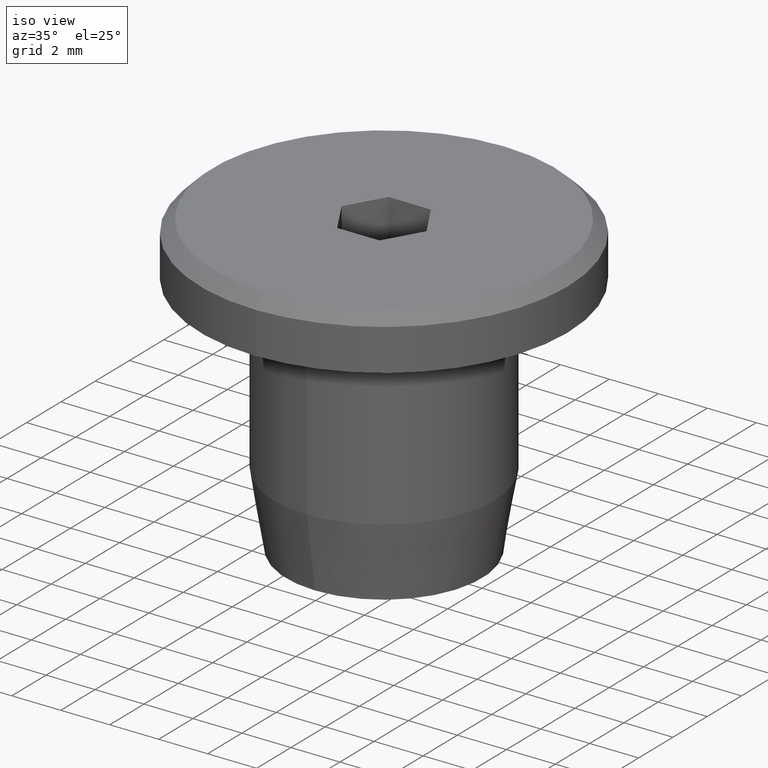
[diagram: clean part render]
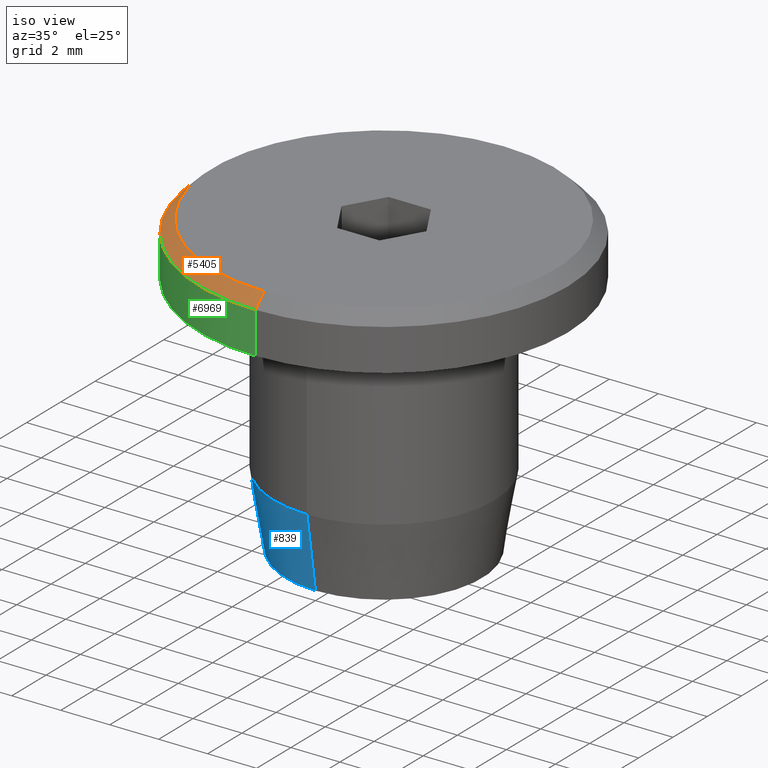
[diagram: same view with three faces highlighted in distinct colors, each labeled with its STEP entity id]
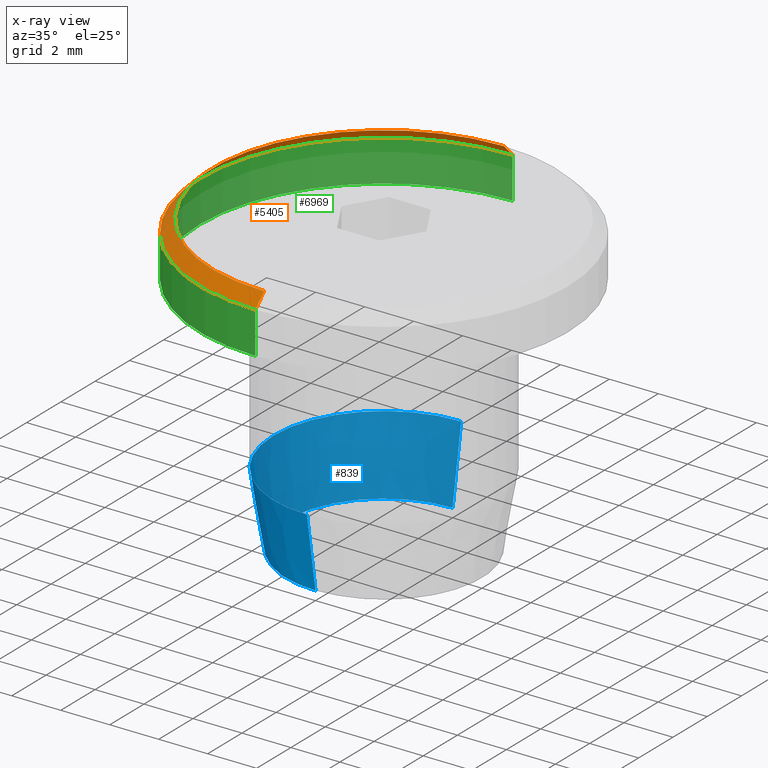
[diagram: x-ray of the same camera — body ghosted, the three highlighted faces saturated]
A machine part, iso view with three faces highlighted in distinct colors.
The next image is the same camera in x-ray (body ghosted, the three faces saturated) — at least one of them is partly hidden behind the body in this view.
Their STEP definitions:

[orange] entity #5405 — the highlighted conical surface has half-angle 45 deg.
#164 = LINE ( 'NONE', #401, #15071 ) ;
#240 = DIRECTION ( 'NONE',  ( 0.0000000000000000000, 1.000000000000000000, 3.469446951953613700E-016 ) ) ;
#401 = CARTESIAN_POINT ( 'NONE',  ( 9.184850993605149900E-016, -7.500000000000001800, 5.599999999999997900 ) ) ;
#788 = AXIS2_PLACEMENT_3D ( 'NONE', #1463, #7845, #240 ) ;
#886 = EDGE_CURVE ( 'NONE', #16173, #5833, #164, .T. ) ;
#912 = ORIENTED_EDGE ( 'NONE', *, *, #15570, .T. ) ;
#1050 = DIRECTION ( 'NONE',  ( 0.0000000000000000000, 0.7071067811865477900, -0.7071067811865473500 ) ) ;
#1238 = DIRECTION ( 'NONE',  ( 0.0000000000000000000, -1.000000000000000000, -3.717264591378871700E-016 ) ) ;
#1463 = CARTESIAN_POINT ( 'NONE',  ( 0.0000000000000000000, -1.081942592009319800E-015, 5.600000000000000500 ) ) ;
#1673 = CIRCLE ( 'NONE', #6494, 7.000000000000000900 ) ;
#1884 = FACE_OUTER_BOUND ( 'NONE', #15128, .T. ) ;
#3779 = CARTESIAN_POINT ( 'NONE',  ( 0.0000000000000000000, -1.255262969126036500E-015, 6.100000000000000500 ) ) ;
#4734 = CARTESIAN_POINT ( 'NONE',  ( 0.0000000000000000000, 7.000000000000000000, 6.100000000000003200 ) ) ;
#5161 = ORIENTED_EDGE ( 'NONE', *, *, #9118, .F. ) ;
#5299 = CARTESIAN_POINT ( 'NONE',  ( 0.0000000000000000000, -1.081942592009320500E-015, 5.600000000000002300 ) ) ;
#5405 = ADVANCED_FACE ( 'NONE', ( #1884 ), #11635, .T. ) ;
#5833 = VERTEX_POINT ( 'NONE', #11811 ) ;
#5858 = ORIENTED_EDGE ( 'NONE', *, *, #16343, .F. ) ;
#6494 = AXIS2_PLACEMENT_3D ( 'NONE', #3779, #8838, #1238 ) ;
#6590 = CARTESIAN_POINT ( 'NONE',  ( 0.0000000000000000000, 7.500000000000000000, 5.600000000000005000 ) ) ;
#6641 = DIRECTION ( 'NONE',  ( -0.0000000000000000000, 3.466407542334332000E-016, -1.000000000000000000 ) ) ;
#7216 = VECTOR ( 'NONE', #1050, 1000.000000000000000 ) ;
#7655 = ORIENTED_EDGE ( 'NONE', *, *, #886, .F. ) ;
#7845 = DIRECTION ( 'NONE',  ( -0.0000000000000000000, 3.466407542334332000E-016, -1.000000000000000000 ) ) ;
#8838 = DIRECTION ( 'NONE',  ( 0.0000000000000000000, -3.466407542334334500E-016, 1.000000000000000000 ) ) ;
#9118 = EDGE_CURVE ( 'NONE', #5833, #10321, #16154, .T. ) ;
#9148 = DIRECTION ( 'NONE',  ( 8.659560562354934100E-017, -0.7071067811865473500, -0.7071067811865477900 ) ) ;
#9883 = CARTESIAN_POINT ( 'NONE',  ( 0.0000000000000000000, 7.500000000000000000, 5.600000000000003200 ) ) ;
#10321 = VERTEX_POINT ( 'NONE', #6590 ) ;
#11369 = AXIS2_PLACEMENT_3D ( 'NONE', #5299, #6641, #14167 ) ;
#11635 = CONICAL_SURFACE ( 'NONE', #788, 7.500000000000000900, 0.7853981633974482800 ) ;
#11811 = CARTESIAN_POINT ( 'NONE',  ( 9.184850993605149900E-016, -7.500000000000001800, 5.599999999999999600 ) ) ;
#13388 = VERTEX_POINT ( 'NONE', #4734 ) ;
#14167 = DIRECTION ( 'NONE',  ( 0.0000000000000000000, -1.000000000000000000, -3.469446951953613700E-016 ) ) ;
#14767 = CARTESIAN_POINT ( 'NONE',  ( 8.878689293818312000E-016, -7.000000000000001800, 6.099999999999997900 ) ) ;
#14975 = LINE ( 'NONE', #9883, #7216 ) ;
#15071 = VECTOR ( 'NONE', #9148, 1000.000000000000000 ) ;
#15128 = EDGE_LOOP ( 'NONE', ( #7655, #5858, #912, #5161 ) ) ;
#15570 = EDGE_CURVE ( 'NONE', #13388, #10321, #14975, .T. ) ;
#16154 = CIRCLE ( 'NONE', #11369, 7.500000000000000900 ) ;
#16173 = VERTEX_POINT ( 'NONE', #14767 ) ;
#16343 = EDGE_CURVE ( 'NONE', #13388, #16173, #1673, .T. ) ;

[blue] entity #839 — the highlighted conical surface has half-angle 9.462 deg.
#839 = ADVANCED_FACE ( 'NONE', ( #10503 ), #7718, .T. ) ;
#936 = CARTESIAN_POINT ( 'NONE',  ( 0.0000000000000000000, 2.973754232521852100E-015, -6.100000000000001400 ) ) ;
#1059 = CARTESIAN_POINT ( 'NONE',  ( 0.0000000000000000000, 4.500000000000007100, -3.099999999999806000 ) ) ;
#1586 = VECTOR ( 'NONE', #4272, 1000.000000000000000 ) ;
#1607 = CARTESIAN_POINT ( 'NONE',  ( 0.0000000000000000000, 1.933831969821484500E-015, -3.099999999999807800 ) ) ;
#2013 = EDGE_CURVE ( 'NONE', #6534, #4172, #11989, .T. ) ;
#3240 = EDGE_CURVE ( 'NONE', #16111, #6534, #11735, .T. ) ;
#4110 = CARTESIAN_POINT ( 'NONE',  ( 0.0000000000000000000, 2.973754232521852100E-015, -6.100000000000001400 ) ) ;
#4172 = VERTEX_POINT ( 'NONE', #5040 ) ;
#4272 = DIRECTION ( 'NONE',  ( 2.013306935865685300E-017, 0.1643989873053539900, 0.9863939238321443000 ) ) ;
#5040 = CARTESIAN_POINT ( 'NONE',  ( 5.510910596163096500E-016, -4.500000000000003600, -3.099999999999809600 ) ) ;
#5259 = DIRECTION ( 'NONE',  ( 0.0000000000000000000, -3.466407542334335000E-016, 1.000000000000000000 ) ) ;
#5593 = CIRCLE ( 'NONE', #15973, 3.999999999999982700 ) ;
#6039 = ORIENTED_EDGE ( 'NONE', *, *, #3240, .F. ) ;
#6105 = CARTESIAN_POINT ( 'NONE',  ( 0.0000000000000000000, -3.999999999999980000, -6.100000000000003200 ) ) ;
#6117 = ORIENTED_EDGE ( 'NONE', *, *, #11317, .T. ) ;
#6330 = EDGE_LOOP ( 'NONE', ( #6039, #14238, #6117, #9542 ) ) ;
#6534 = VERTEX_POINT ( 'NONE', #1059 ) ;
#6546 = DIRECTION ( 'NONE',  ( 0.0000000000000000000, -3.466407542334335000E-016, 1.000000000000000000 ) ) ;
#6950 = CARTESIAN_POINT ( 'NONE',  ( 0.0000000000000000000, -3.999999999999980000, -6.100000000000003200 ) ) ;
#7702 = AXIS2_PLACEMENT_3D ( 'NONE', #1607, #5259, #15450 ) ;
#7718 = CONICAL_SURFACE ( 'NONE', #16232, 3.999999999999982700, 0.1651486774146238300 ) ;
#7997 = DIRECTION ( 'NONE',  ( 0.0000000000000000000, -1.000000000000000000, -4.336808689942036500E-016 ) ) ;
#8306 = VECTOR ( 'NONE', #16295, 1000.000000000000100 ) ;
#9542 = ORIENTED_EDGE ( 'NONE', *, *, #2013, .F. ) ;
#9821 = DIRECTION ( 'NONE',  ( -0.0000000000000000000, 3.466407542334334500E-016, -1.000000000000000000 ) ) ;
#9951 = VERTEX_POINT ( 'NONE', #6950 ) ;
#10313 = CARTESIAN_POINT ( 'NONE',  ( 5.204748896376243800E-016, 3.999999999999985300, -6.099999999999999600 ) ) ;
#10503 = FACE_OUTER_BOUND ( 'NONE', #6330, .T. ) ;
#10706 = LINE ( 'NONE', #6105, #8306 ) ;
#10731 = CARTESIAN_POINT ( 'NONE',  ( 4.898587196589391100E-016, 3.999999999999985300, -6.099999999999999600 ) ) ;
#11112 = DIRECTION ( 'NONE',  ( 0.0000000000000000000, 1.000000000000000000, 4.336808689942036500E-016 ) ) ;
#11317 = EDGE_CURVE ( 'NONE', #9951, #4172, #10706, .T. ) ;
#11735 = LINE ( 'NONE', #10731, #1586 ) ;
#11989 = CIRCLE ( 'NONE', #7702, 4.500000000000005300 ) ;
#14194 = EDGE_CURVE ( 'NONE', #9951, #16111, #5593, .T. ) ;
#14238 = ORIENTED_EDGE ( 'NONE', *, *, #14194, .F. ) ;
#15450 = DIRECTION ( 'NONE',  ( 0.0000000000000000000, 1.000000000000000000, 3.854941057726233700E-016 ) ) ;
#15973 = AXIS2_PLACEMENT_3D ( 'NONE', #936, #9821, #11112 ) ;
#16111 = VERTEX_POINT ( 'NONE', #10313 ) ;
#16232 = AXIS2_PLACEMENT_3D ( 'NONE', #4110, #6546, #7997 ) ;
#16295 = DIRECTION ( 'NONE',  ( 0.0000000000000000000, -0.1643989873053546800, 0.9863939238321441900 ) ) ;

[green] entity #6969 — the highlighted cylindrical surface (partial cylindrical patch) has radius 7.5 mm, axis along (-0, 0, -1).
#619 = CARTESIAN_POINT ( 'NONE',  ( 0.0000000000000000000, 7.500000000000003600, -6.099999999999998800 ) ) ;
#1866 = FACE_OUTER_BOUND ( 'NONE', #8877, .T. ) ;
#2459 = CIRCLE ( 'NONE', #16449, 7.500000000000000900 ) ;
#3954 = DIRECTION ( 'NONE',  ( -0.0000000000000000000, 3.466407542334334500E-016, -1.000000000000000000 ) ) ;
#5299 = CARTESIAN_POINT ( 'NONE',  ( 0.0000000000000000000, -1.081942592009320500E-015, 5.600000000000002300 ) ) ;
#5370 = EDGE_CURVE ( 'NONE', #9086, #14689, #2459, .T. ) ;
#5833 = VERTEX_POINT ( 'NONE', #11811 ) ;
#6010 = CARTESIAN_POINT ( 'NONE',  ( 0.0000000000000000000, 7.500000000000000000, 3.900000000000001700 ) ) ;
#6064 = CARTESIAN_POINT ( 'NONE',  ( 9.184850993605149900E-016, -7.499999999999998200, -6.100000000000004100 ) ) ;
#6561 = CARTESIAN_POINT ( 'NONE',  ( 0.0000000000000000000, -4.926533098124824600E-016, 3.899999999999999000 ) ) ;
#6590 = CARTESIAN_POINT ( 'NONE',  ( 0.0000000000000000000, 7.500000000000000000, 5.600000000000005000 ) ) ;
#6641 = DIRECTION ( 'NONE',  ( -0.0000000000000000000, 3.466407542334332000E-016, -1.000000000000000000 ) ) ;
#6776 = LINE ( 'NONE', #619, #12968 ) ;
#6969 = ADVANCED_FACE ( 'NONE', ( #1866 ), #11223, .T. ) ;
#7738 = DIRECTION ( 'NONE',  ( 0.0000000000000000000, 1.000000000000000000, 3.469446951953613700E-016 ) ) ;
#8677 = DIRECTION ( 'NONE',  ( -0.0000000000000000000, 3.466407542334334500E-016, -1.000000000000000000 ) ) ;
#8877 = EDGE_LOOP ( 'NONE', ( #10897, #16286, #11821, #15472 ) ) ;
#9086 = VERTEX_POINT ( 'NONE', #15552 ) ;
#9118 = EDGE_CURVE ( 'NONE', #5833, #10321, #16154, .T. ) ;
#10013 = EDGE_CURVE ( 'NONE', #10321, #14689, #6776, .T. ) ;
#10197 = CARTESIAN_POINT ( 'NONE',  ( 0.0000000000000000000, 2.973754232521852100E-015, -6.100000000000001400 ) ) ;
#10253 = DIRECTION ( 'NONE',  ( 0.0000000000000000000, 1.000000000000000000, 3.469446951953613700E-016 ) ) ;
#10266 = VECTOR ( 'NONE', #8677, 1000.000000000000000 ) ;
#10321 = VERTEX_POINT ( 'NONE', #6590 ) ;
#10677 = LINE ( 'NONE', #6064, #10266 ) ;
#10897 = ORIENTED_EDGE ( 'NONE', *, *, #13316, .F. ) ;
#11223 = CYLINDRICAL_SURFACE ( 'NONE', #11466, 7.500000000000000900 ) ;
#11369 = AXIS2_PLACEMENT_3D ( 'NONE', #5299, #6641, #14167 ) ;
#11466 = AXIS2_PLACEMENT_3D ( 'NONE', #10197, #15365, #10253 ) ;
#11811 = CARTESIAN_POINT ( 'NONE',  ( 9.184850993605149900E-016, -7.500000000000001800, 5.599999999999999600 ) ) ;
#11821 = ORIENTED_EDGE ( 'NONE', *, *, #10013, .T. ) ;
#12968 = VECTOR ( 'NONE', #14476, 1000.000000000000000 ) ;
#13316 = EDGE_CURVE ( 'NONE', #5833, #9086, #10677, .T. ) ;
#14167 = DIRECTION ( 'NONE',  ( 0.0000000000000000000, -1.000000000000000000, -3.469446951953613700E-016 ) ) ;
#14476 = DIRECTION ( 'NONE',  ( -0.0000000000000000000, 3.466407542334334500E-016, -1.000000000000000000 ) ) ;
#14689 = VERTEX_POINT ( 'NONE', #6010 ) ;
#15365 = DIRECTION ( 'NONE',  ( -0.0000000000000000000, 3.466407542334334500E-016, -1.000000000000000000 ) ) ;
#15472 = ORIENTED_EDGE ( 'NONE', *, *, #5370, .F. ) ;
#15552 = CARTESIAN_POINT ( 'NONE',  ( 9.184850993605149900E-016, -7.500000000000001800, 3.899999999999996400 ) ) ;
#16154 = CIRCLE ( 'NONE', #11369, 7.500000000000000900 ) ;
#16286 = ORIENTED_EDGE ( 'NONE', *, *, #9118, .T. ) ;
#16449 = AXIS2_PLACEMENT_3D ( 'NONE', #6561, #3954, #7738 ) ;